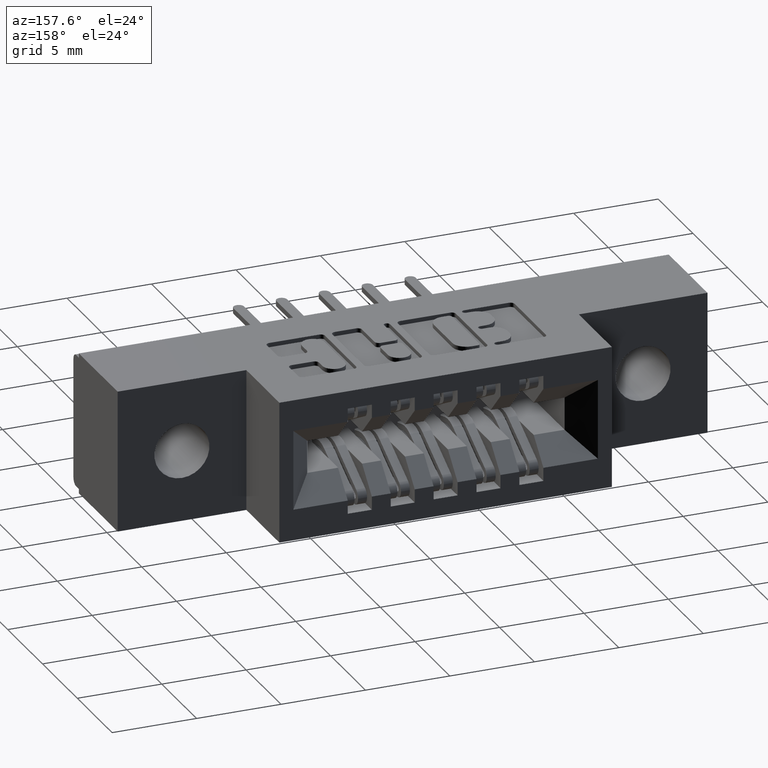
[diagram: clean part render]
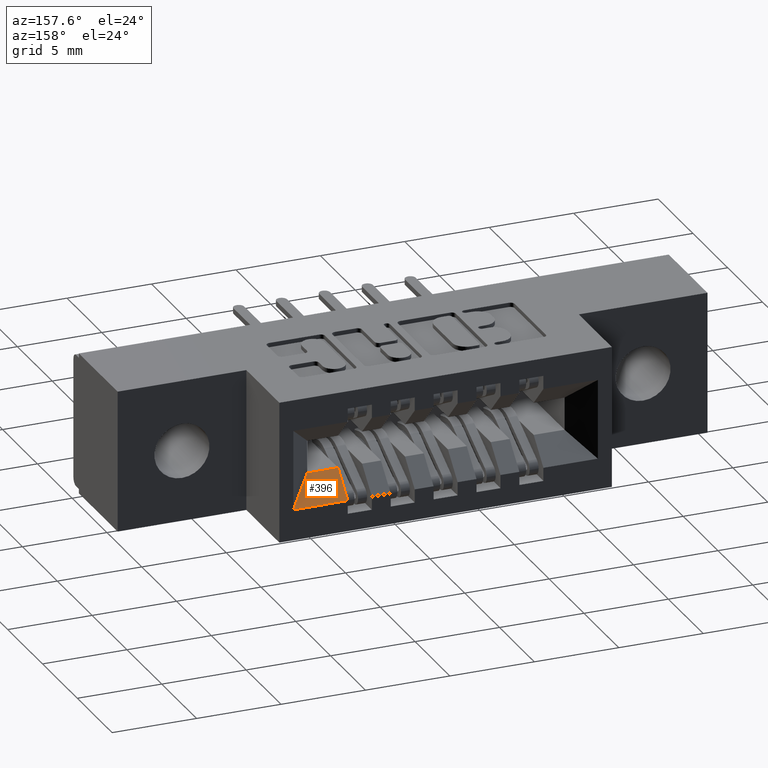
[diagram: same view with one face highlighted and labeled with its STEP entity id]
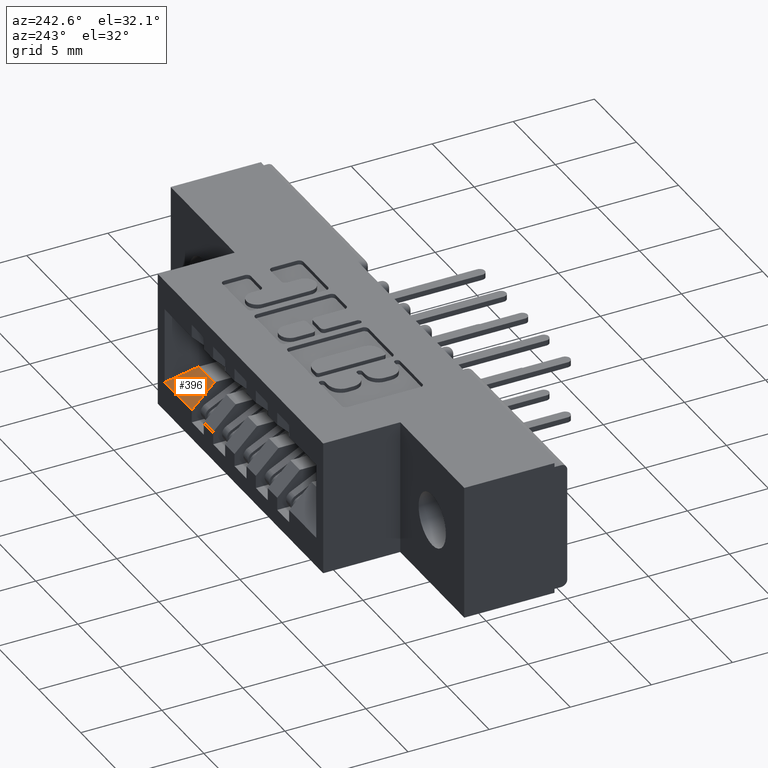
[diagram: same view with one face highlighted and labeled with its STEP entity id]
A machine part, auxiliary view. The second image highlights one B-rep face of the part: STEP entity #396.
A second angle (auxiliary view) of the same face is appended — the face is thin or edge-on in the first view.
In plain terms, the highlighted planar face has unit normal (0, -0.7071, -0.7071).
Its self-contained STEP definition (entity closure, byte-faithful):
#105 = VECTOR ( 'NONE', #5302, 39.37007874015748100 ) ;
#396 = ADVANCED_FACE ( 'NONE', ( #10078 ), #1939, .F. ) ;
#430 = CARTESIAN_POINT ( 'NONE',  ( 0.9154999999999994300, 0.3820000000000001200, -0.2029999999999999300 ) ) ;
#557 = VERTEX_POINT ( 'NONE', #7924 ) ;
#1508 = VECTOR ( 'NONE', #8008, 39.37007874015748100 ) ;
#1531 = CARTESIAN_POINT ( 'NONE',  ( 0.9874999999999994900, 0.3819999999999999000, -0.2029999999999997600 ) ) ;
#1874 = CARTESIAN_POINT ( 'NONE',  ( 0.3874999999999995100, 0.3819999999999999000, -0.2029999999999997900 ) ) ;
#1939 = PLANE ( 'NONE',  #8748 ) ;
#2130 = EDGE_CURVE ( 'NONE', #4560, #557, #8194, .T. ) ;
#2801 = LINE ( 'NONE', #8817, #105 ) ;
#2823 = DIRECTION ( 'NONE',  ( -1.000000000000000000, 0.0000000000000000000, -5.691349986800548400E-017 ) ) ;
#2899 = EDGE_CURVE ( 'NONE', #7962, #5656, #4480, .T. ) ;
#2980 = EDGE_CURVE ( 'NONE', #4560, #5656, #2801, .T. ) ;
#2996 = EDGE_CURVE ( 'NONE', #7962, #557, #9240, .T. ) ;
#3570 = DIRECTION ( 'NONE',  ( 0.5773502691896247300, 0.5773502691896276200, -0.5773502691896248400 ) ) ;
#4267 = CARTESIAN_POINT ( 'NONE',  ( 0.9621666666666662800, 0.3566666666666665800, -0.1776666666666665300 ) ) ;
#4480 = LINE ( 'NONE', #1874, #10142 ) ;
#4560 = VERTEX_POINT ( 'NONE', #5804 ) ;
#4867 = VECTOR ( 'NONE', #3570, 39.37007874015748900 ) ;
#5302 = DIRECTION ( 'NONE',  ( -0.0000000000000000000, -0.7071067811865492400, 0.7071067811865458000 ) ) ;
#5622 = DIRECTION ( 'NONE',  ( 0.0000000000000000000, 0.7071067811865492400, -0.7071067811865458000 ) ) ;
#5656 = VERTEX_POINT ( 'NONE', #430 ) ;
#5804 = CARTESIAN_POINT ( 'NONE',  ( 0.9154999999999994300, 0.4370000000000000600, -0.2579999999999996700 ) ) ;
#7810 = CARTESIAN_POINT ( 'NONE',  ( -4.097771990496417500E-018, 0.4370000000000000000, -0.2579999999999996200 ) ) ;
#7924 = CARTESIAN_POINT ( 'NONE',  ( 1.042499999999999300, 0.4370000000000000000, -0.2579999999999995600 ) ) ;
#7962 = VERTEX_POINT ( 'NONE', #1531 ) ;
#8008 = DIRECTION ( 'NONE',  ( 1.000000000000000000, 0.0000000000000000000, 5.691349986800548400E-017 ) ) ;
#8176 = ORIENTED_EDGE ( 'NONE', *, *, #2980, .T. ) ;
#8194 = LINE ( 'NONE', #7810, #1508 ) ;
#8303 = ORIENTED_EDGE ( 'NONE', *, *, #2130, .F. ) ;
#8748 = AXIS2_PLACEMENT_3D ( 'NONE', #9821, #9060, #5622 ) ;
#8817 = CARTESIAN_POINT ( 'NONE',  ( 0.9154999999999994300, 0.3819999999999999000, -0.2029999999999997900 ) ) ;
#9060 = DIRECTION ( 'NONE',  ( 4.024392169772645400E-017, -0.7071067811865458000, -0.7071067811865492400 ) ) ;
#9240 = LINE ( 'NONE', #4267, #4867 ) ;
#9821 = CARTESIAN_POINT ( 'NONE',  ( 0.3874999999999995100, 0.3819999999999999000, -0.2029999999999997900 ) ) ;
#10078 = FACE_OUTER_BOUND ( 'NONE', #10308, .T. ) ;
#10142 = VECTOR ( 'NONE', #2823, 39.37007874015748100 ) ;
#10308 = EDGE_LOOP ( 'NONE', ( #8303, #8176, #10461, #10635 ) ) ;
#10461 = ORIENTED_EDGE ( 'NONE', *, *, #2899, .F. ) ;
#10635 = ORIENTED_EDGE ( 'NONE', *, *, #2996, .T. ) ;